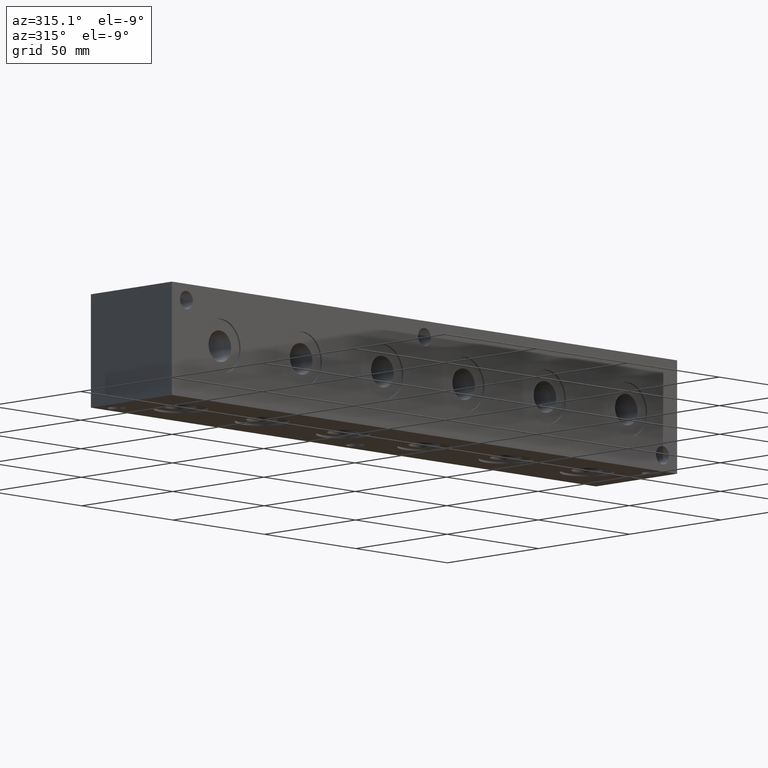
[diagram: clean part render]
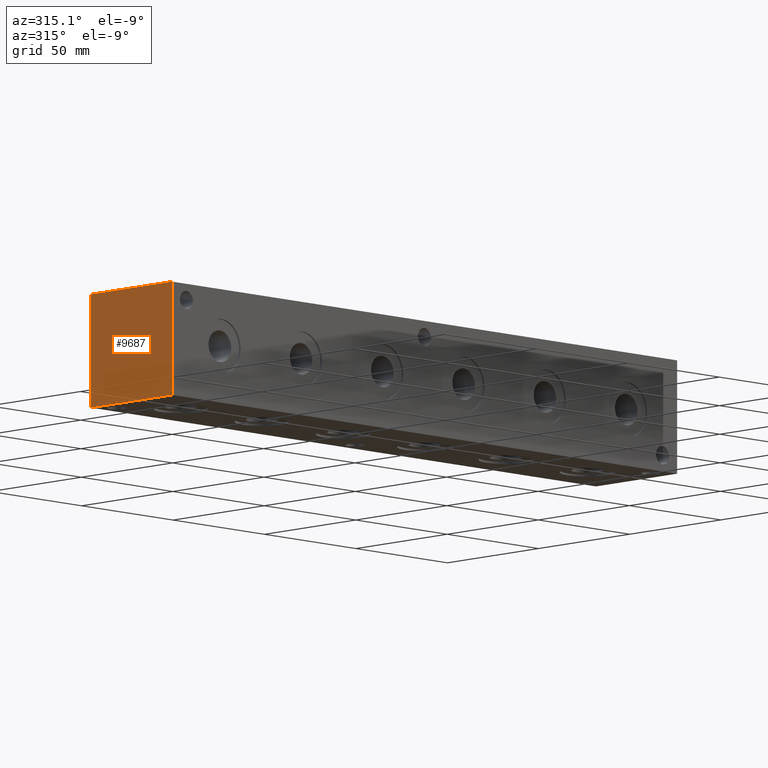
[diagram: same view with one face highlighted and labeled with its STEP entity id]
A machine part, auxiliary view. The second image highlights one B-rep face of the part: STEP entity #9687.
In plain terms, the highlighted planar face has unit normal (-1, 0, 0).
Its self-contained STEP definition (entity closure, byte-faithful):
#1416=FACE_OUTER_BOUND('',#1999,.T.);
#1999=EDGE_LOOP('',(#8577,#8578,#8579,#8580));
#2290=LINE('',#14852,#3106);
#2834=LINE('',#16824,#3650);
#2835=LINE('',#16825,#3651);
#2836=LINE('',#16826,#3652);
#3106=VECTOR('',#10880,10.);
#3650=VECTOR('',#12814,10.);
#3651=VECTOR('',#12815,10.);
#3652=VECTOR('',#12816,10.);
#3948=VERTEX_POINT('',#14845);
#3951=VERTEX_POINT('',#14850);
#4555=VERTEX_POINT('',#16822);
#4556=VERTEX_POINT('',#16823);
#4997=EDGE_CURVE('',#3951,#3948,#2290,.T.);
#5910=EDGE_CURVE('',#4555,#4556,#2834,.T.);
#5911=EDGE_CURVE('',#4556,#3948,#2835,.T.);
#5912=EDGE_CURVE('',#4555,#3951,#2836,.T.);
#8577=ORIENTED_EDGE('',*,*,#5910,.T.);
#8578=ORIENTED_EDGE('',*,*,#5911,.T.);
#8579=ORIENTED_EDGE('',*,*,#4997,.F.);
#8580=ORIENTED_EDGE('',*,*,#5912,.F.);
#8880=PLANE('',#10470);
#9687=ADVANCED_FACE('',(#1416),#8880,.T.);
#10470=AXIS2_PLACEMENT_3D('',#16821,#12812,#12813);
#10880=DIRECTION('',(0.,-1.,0.));
#12812=DIRECTION('center_axis',(-1.,0.,0.));
#12813=DIRECTION('ref_axis',(0.,-1.,0.));
#12814=DIRECTION('',(0.,-1.,0.));
#12815=DIRECTION('',(0.,0.,1.));
#12816=DIRECTION('',(0.,0.,1.));
#14845=CARTESIAN_POINT('',(0.,0.,44.45));
#14850=CARTESIAN_POINT('',(0.,44.45,44.45));
#14852=CARTESIAN_POINT('',(0.,44.45,44.45));
#16821=CARTESIAN_POINT('Origin',(0.,44.45,0.));
#16822=CARTESIAN_POINT('',(0.,44.45,0.));
#16823=CARTESIAN_POINT('',(0.,0.,0.));
#16824=CARTESIAN_POINT('',(0.,44.45,0.));
#16825=CARTESIAN_POINT('',(0.,0.,0.));
#16826=CARTESIAN_POINT('',(0.,44.45,0.));